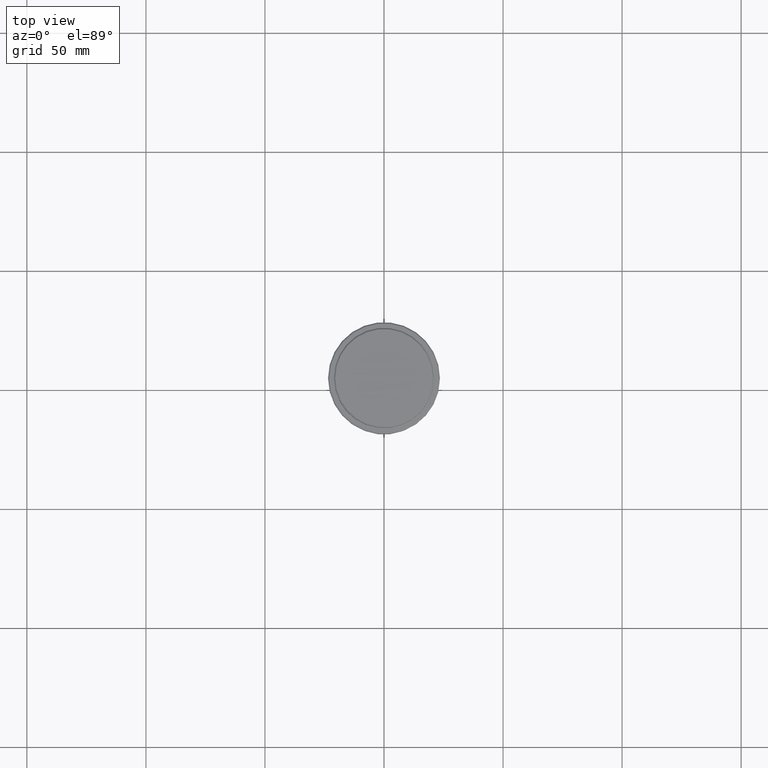
[diagram: clean part render]
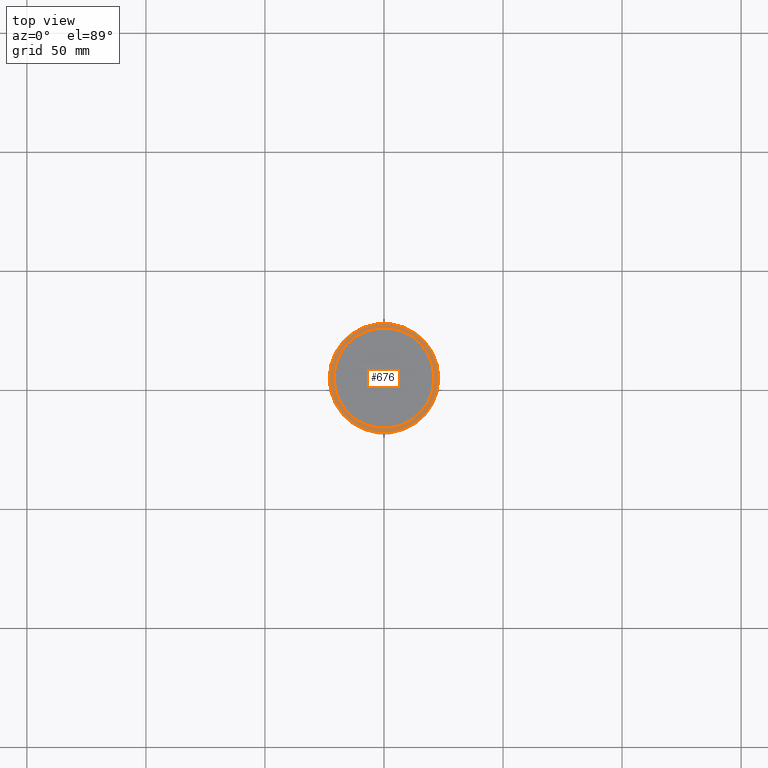
[diagram: same view with one face highlighted and labeled with its STEP entity id]
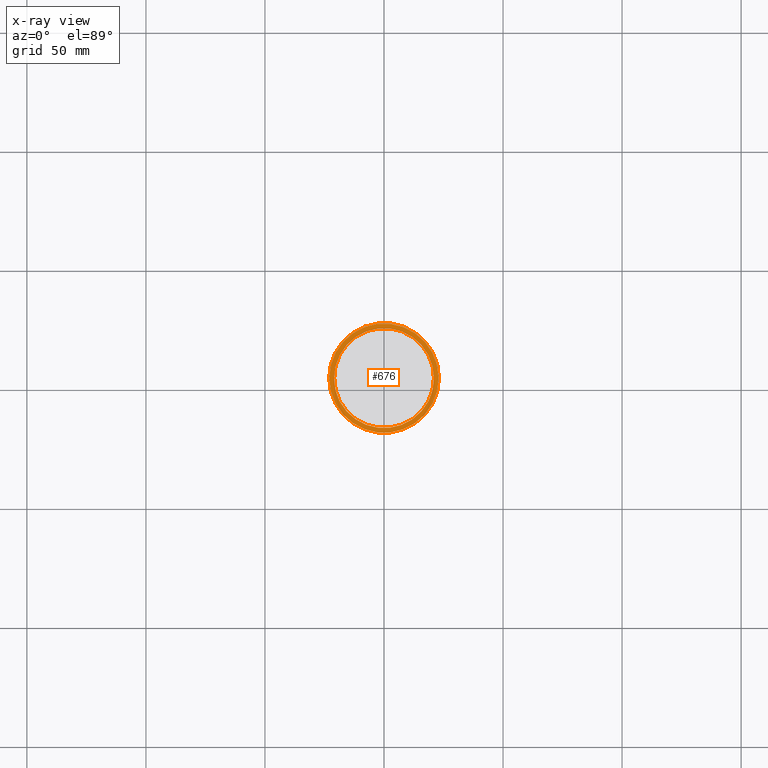
[diagram: x-ray of the same camera — body ghosted, the highlighted face saturated]
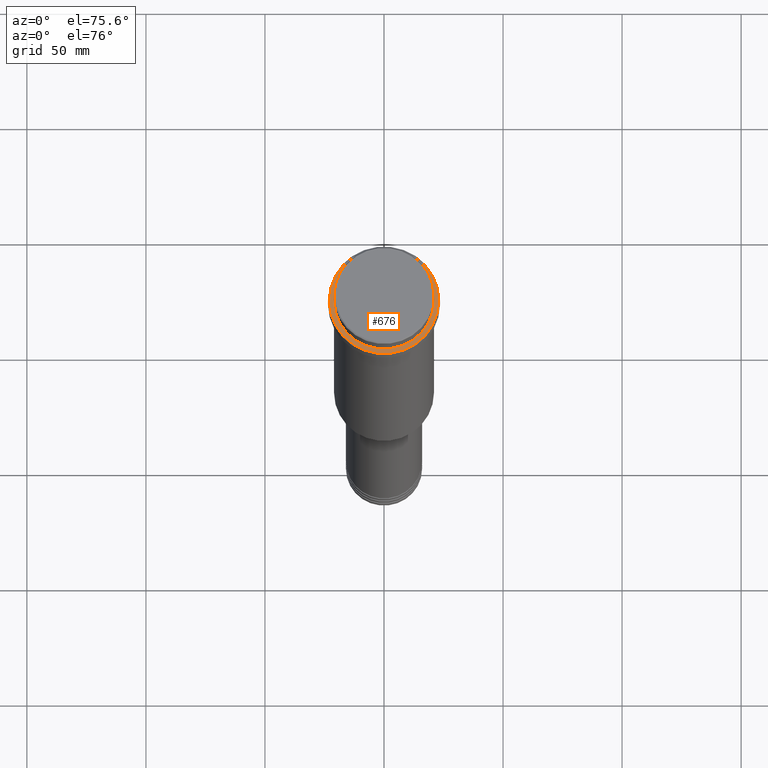
[diagram: same view with one face highlighted and labeled with its STEP entity id]
A machine part, top view. The second image highlights one B-rep face of the part: STEP entity #676.
The next image is the same camera in x-ray: the body ghosted, the highlighted face saturated — about 0% of this face is hidden behind the body in this view.
A second angle (auxiliary view) of the same face is appended — the face is thin or edge-on in the first view.
In plain terms, the highlighted planar face has unit normal (0, -0, 1).
Its self-contained STEP definition (entity closure, byte-faithful):
#13 = ORIENTED_EDGE ( 'NONE', *, *, #893, .T. ) ;
#26 = DIRECTION ( 'NONE',  ( 0.000000000000000000, -0.000000000000000000, 1.000000000000000000 ) ) ;
#31 = CARTESIAN_POINT ( 'NONE',  ( 0.000000000000000000, 0.000000000000000000, -9.000000000000001776 ) ) ;
#60 = CARTESIAN_POINT ( 'NONE',  ( 0.000000000000000000, 0.000000000000000000, -9.000000000000001776 ) ) ;
#82 = ORIENTED_EDGE ( 'NONE', *, *, #940, .T. ) ;
#104 = PLANE ( 'NONE',  #173 ) ;
#143 = EDGE_CURVE ( 'NONE', #224, #633, #1161, .T. ) ;
#147 = CARTESIAN_POINT ( 'NONE',  ( 0.000000000000000000, 0.000000000000000000, -9.000000000000001776 ) ) ;
#173 = AXIS2_PLACEMENT_3D ( 'NONE', #867, #26, #1131 ) ;
#224 = VERTEX_POINT ( 'NONE', #663 ) ;
#303 = CIRCLE ( 'NONE', #699, 20.99999999999999289 ) ;
#333 = EDGE_CURVE ( 'NONE', #649, #575, #1110, .T. ) ;
#362 = DIRECTION ( 'NONE',  ( -0.000000000000000000, -0.000000000000000000, 1.000000000000000000 ) ) ;
#367 = CARTESIAN_POINT ( 'NONE',  ( 0.000000000000000000, 0.000000000000000000, -9.000000000000001776 ) ) ;
#400 = AXIS2_PLACEMENT_3D ( 'NONE', #367, #1377, #1373 ) ;
#412 = ORIENTED_EDGE ( 'NONE', *, *, #333, .T. ) ;
#471 = DIRECTION ( 'NONE',  ( 1.000000000000000000, 0.000000000000000000, 0.000000000000000000 ) ) ;
#492 = AXIS2_PLACEMENT_3D ( 'NONE', #31, #362, #471 ) ;
#517 = CARTESIAN_POINT ( 'NONE',  ( -20.99999999999999289, 2.571758278209440872E-15, -9.000000000000001776 ) ) ;
#575 = VERTEX_POINT ( 'NONE', #708 ) ;
#578 = DIRECTION ( 'NONE',  ( 0.000000000000000000, 0.000000000000000000, -1.000000000000000000 ) ) ;
#621 = DIRECTION ( 'NONE',  ( 1.000000000000000000, 0.000000000000000000, 0.000000000000000000 ) ) ;
#633 = VERTEX_POINT ( 'NONE', #517 ) ;
#640 = EDGE_LOOP ( 'NONE', ( #13, #412 ) ) ;
#649 = VERTEX_POINT ( 'NONE', #1372 ) ;
#663 = CARTESIAN_POINT ( 'NONE',  ( 20.99999999999999289, 0.000000000000000000, -9.000000000000001776 ) ) ;
#676 = ADVANCED_FACE ( 'NONE', ( #756, #1093 ), #104, .T. ) ;
#699 = AXIS2_PLACEMENT_3D ( 'NONE', #60, #1394, #621 ) ;
#708 = CARTESIAN_POINT ( 'NONE',  ( -23.00000000000005329, 0.000000000000000000, -9.000000000000001776 ) ) ;
#756 = FACE_OUTER_BOUND ( 'NONE', #640, .T. ) ;
#867 = CARTESIAN_POINT ( 'NONE',  ( 0.000000000000000000, 20.49999999999999645, -9.000000000000001776 ) ) ;
#893 = EDGE_CURVE ( 'NONE', #575, #649, #1023, .T. ) ;
#940 = EDGE_CURVE ( 'NONE', #633, #224, #303, .T. ) ;
#1014 = DIRECTION ( 'NONE',  ( 1.000000000000000000, 0.000000000000000000, 0.000000000000000000 ) ) ;
#1023 = CIRCLE ( 'NONE', #400, 23.00000000000005329 ) ;
#1093 = FACE_BOUND ( 'NONE', #1409, .T. ) ;
#1110 = CIRCLE ( 'NONE', #492, 23.00000000000005329 ) ;
#1131 = DIRECTION ( 'NONE',  ( 1.000000000000000000, 0.000000000000000000, 0.000000000000000000 ) ) ;
#1161 = CIRCLE ( 'NONE', #1360, 20.99999999999999289 ) ;
#1164 = ORIENTED_EDGE ( 'NONE', *, *, #143, .T. ) ;
#1360 = AXIS2_PLACEMENT_3D ( 'NONE', #147, #578, #1014 ) ;
#1372 = CARTESIAN_POINT ( 'NONE',  ( 23.00000000000005329, 2.847303808017599689E-15, -9.000000000000001776 ) ) ;
#1373 = DIRECTION ( 'NONE',  ( 1.000000000000000000, 0.000000000000000000, 0.000000000000000000 ) ) ;
#1377 = DIRECTION ( 'NONE',  ( -0.000000000000000000, -0.000000000000000000, 1.000000000000000000 ) ) ;
#1394 = DIRECTION ( 'NONE',  ( 0.000000000000000000, 0.000000000000000000, -1.000000000000000000 ) ) ;
#1409 = EDGE_LOOP ( 'NONE', ( #1164, #82 ) ) ;